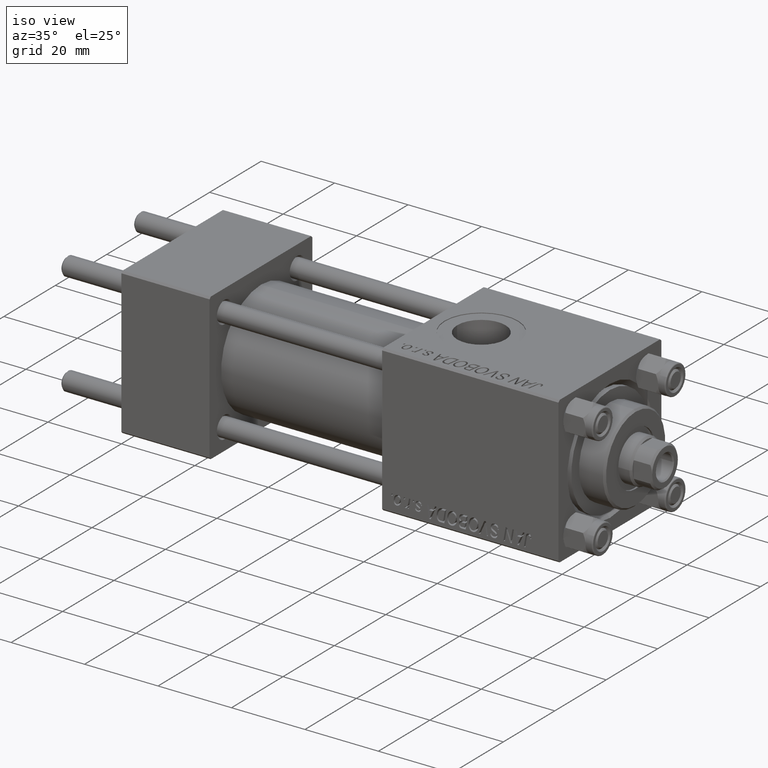
[diagram: clean part render]
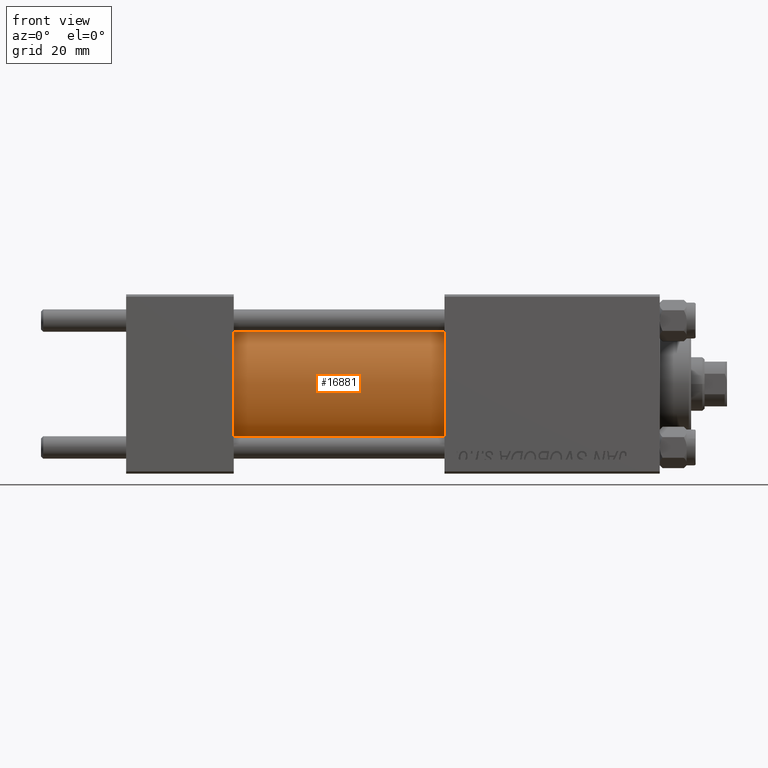
[diagram: tour spotlight — one face highlighted and labeled with its STEP entity id]
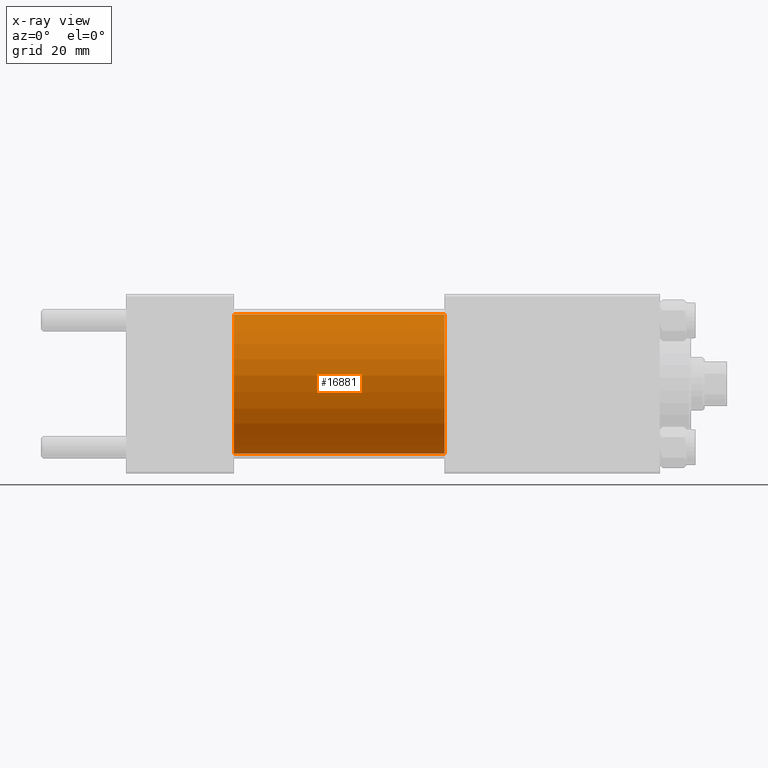
[diagram: x-ray of the same camera — body ghosted, this tour face saturated]
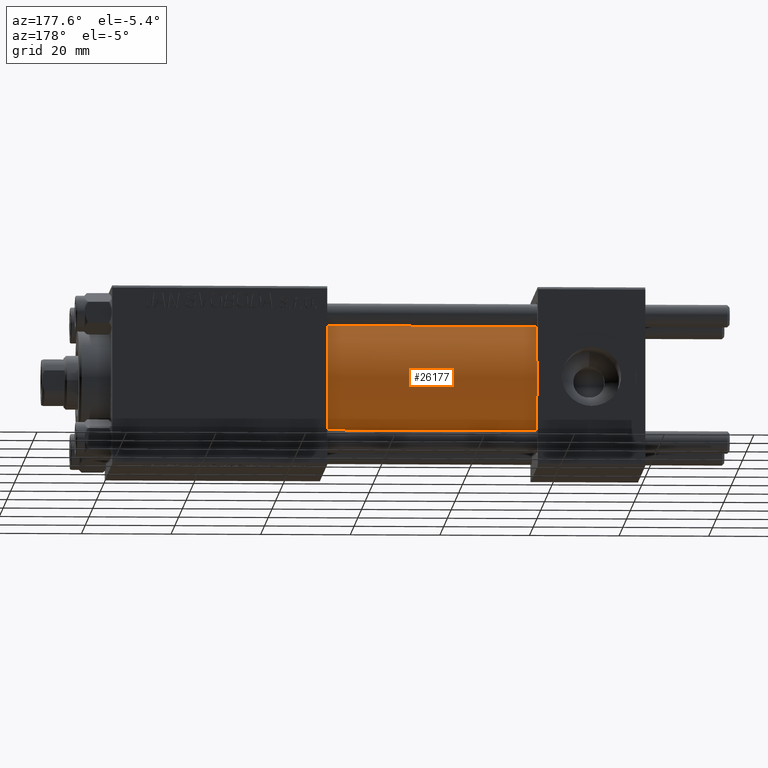
[diagram: tour spotlight — one face highlighted and labeled with its STEP entity id]
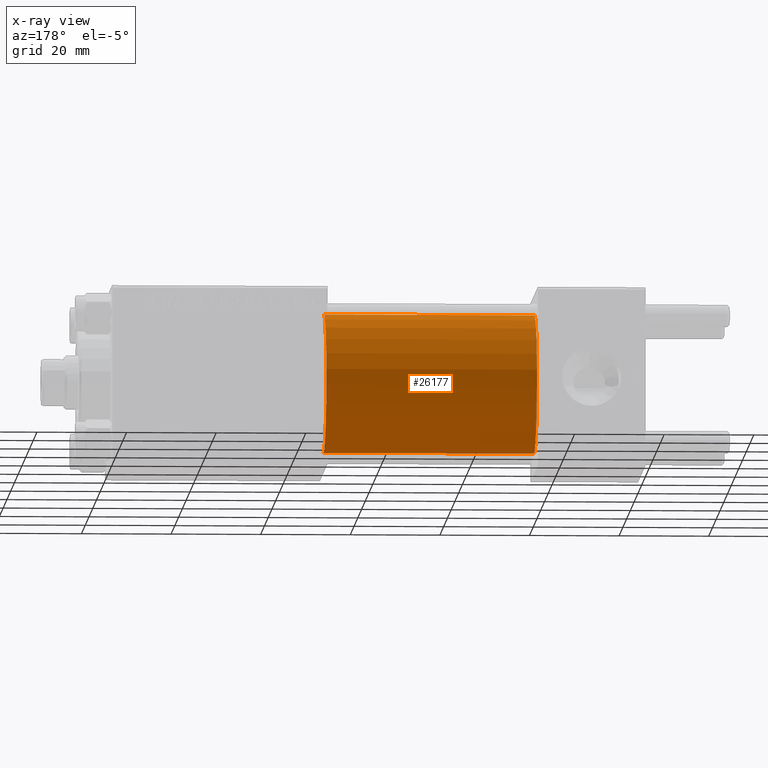
[diagram: x-ray of the same camera — body ghosted, this tour face saturated]
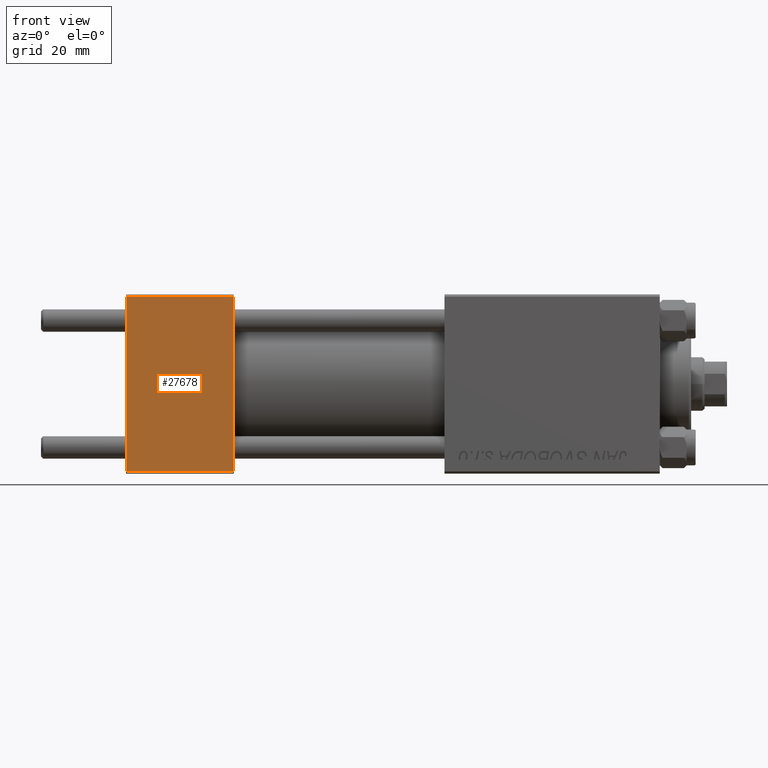
[diagram: tour spotlight — one face highlighted and labeled with its STEP entity id]
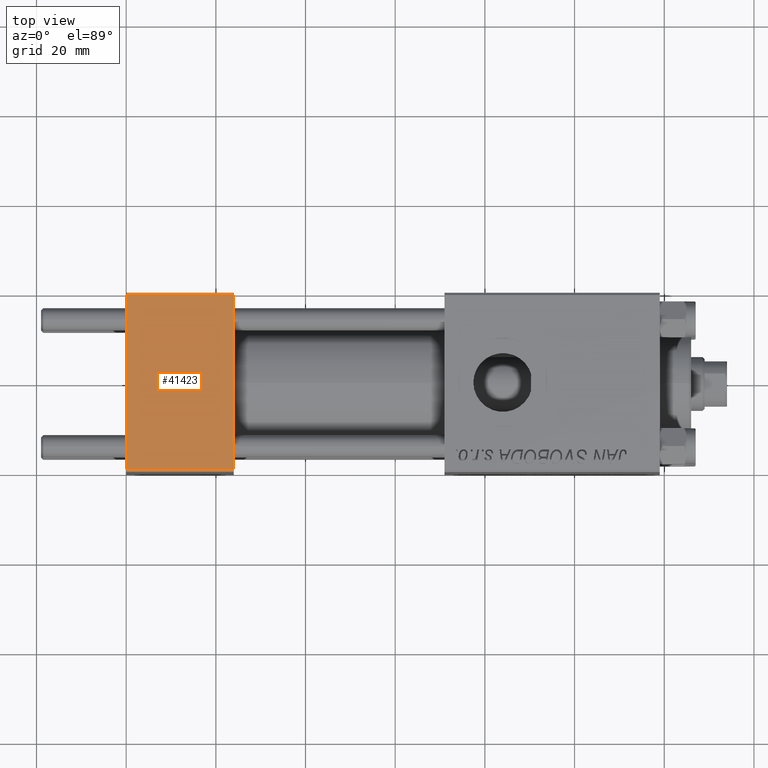
[diagram: tour spotlight — one face highlighted and labeled with its STEP entity id]
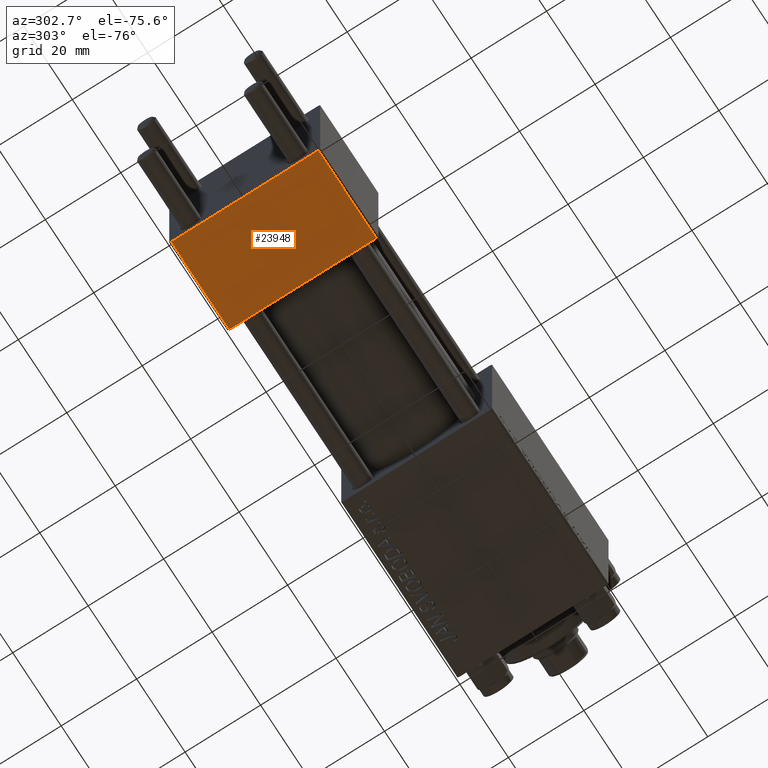
[diagram: tour spotlight — one face highlighted and labeled with its STEP entity id]
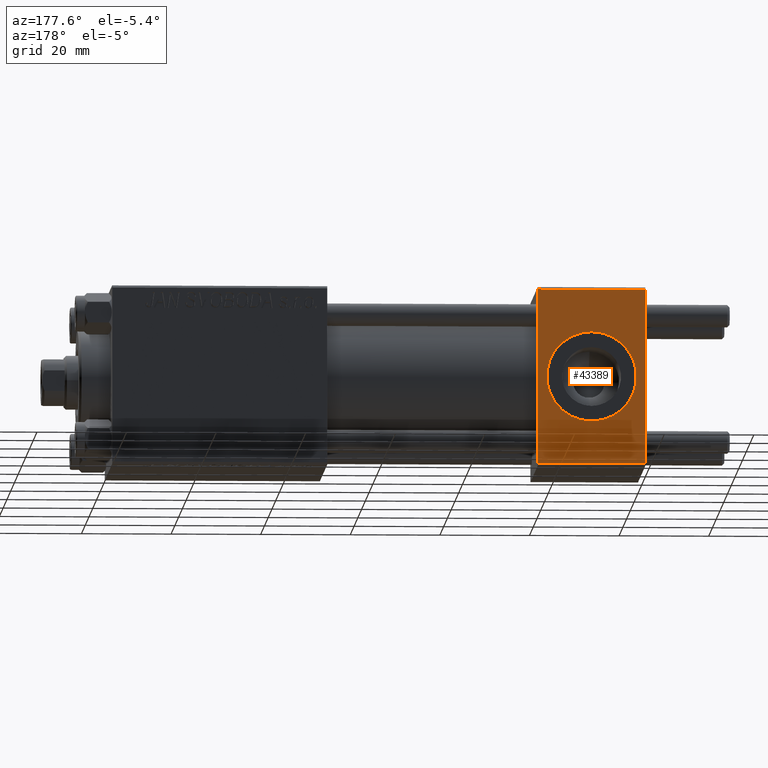
[diagram: tour spotlight — one face highlighted and labeled with its STEP entity id]
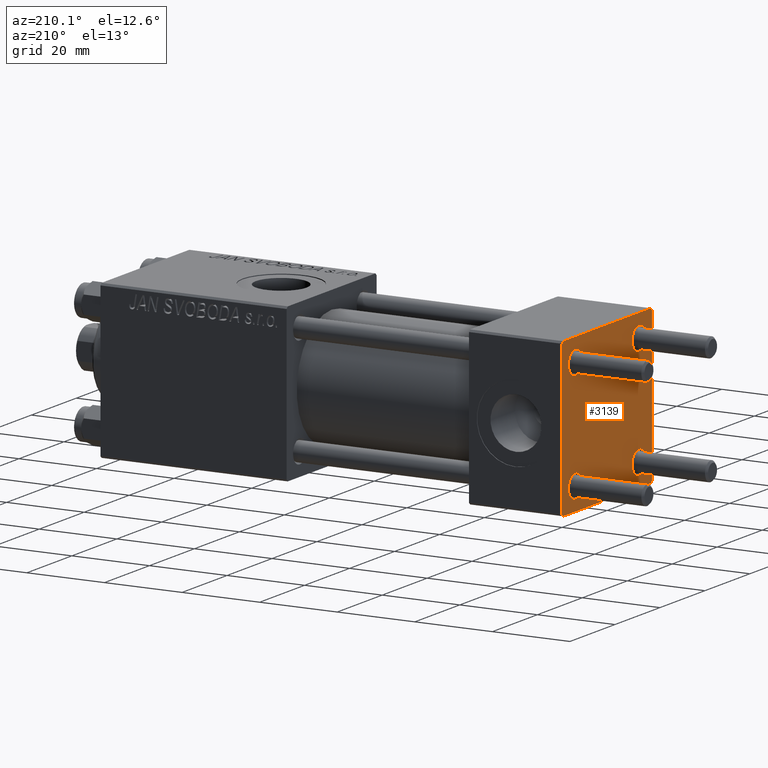
[diagram: tour spotlight — one face highlighted and labeled with its STEP entity id]
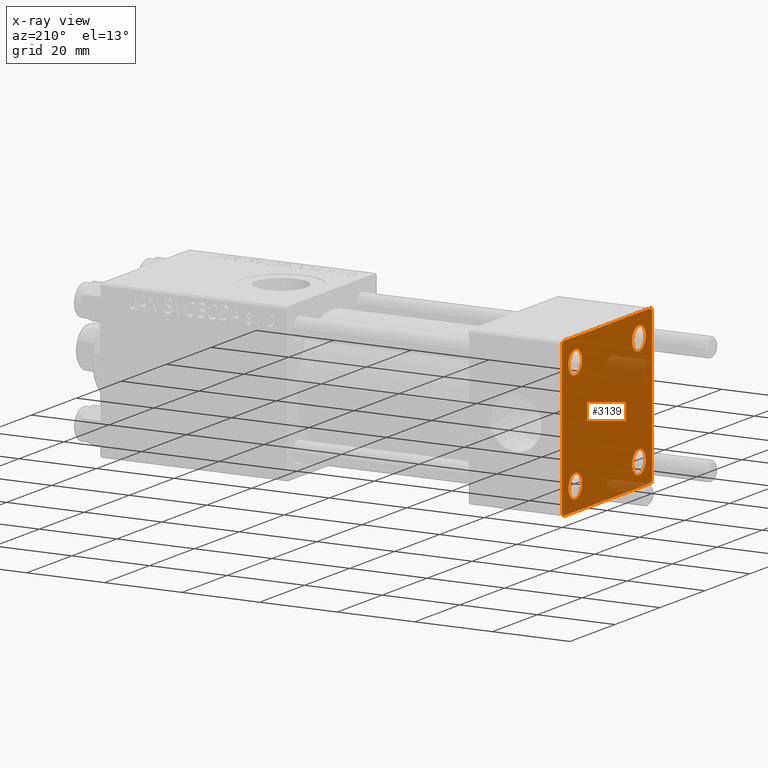
[diagram: x-ray of the same camera — body ghosted, this tour face saturated]
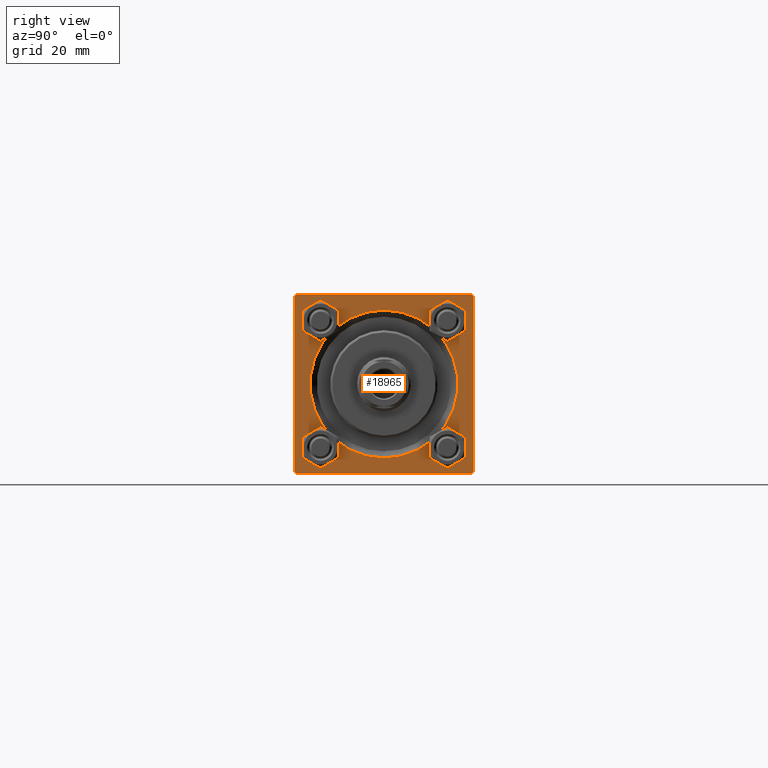
[diagram: tour spotlight — one face highlighted and labeled with its STEP entity id]
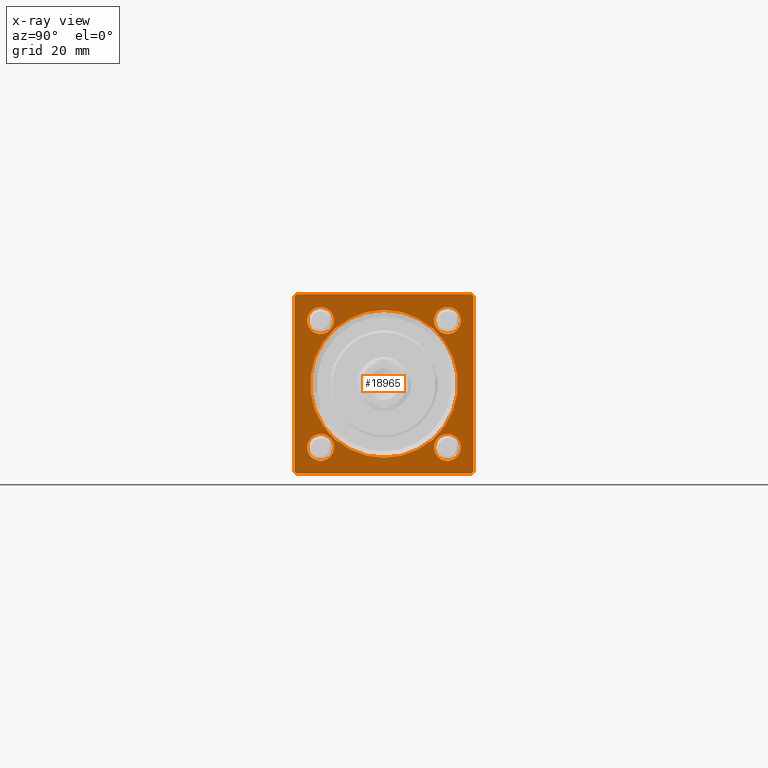
[diagram: x-ray of the same camera — body ghosted, this tour face saturated]
A machine part: a face-by-face anatomy tour. The part has 1132 B-rep faces; the first image is the clean iso view, then the 8 largest visible faces are spotlighted one at a time (largest first), each with its STEP entity span.

Face 1 — front view, entity #16881. An x-ray twin of the same camera follows (body ghosted, this face saturated) — the face is partly hidden behind the body. In plain terms, the highlighted cylindrical surface (partial cylindrical patch) has radius 15.5 mm, axis along (-1, -0, -0).
Definition (entity closure, byte-faithful):
#149 = EDGE_CURVE ( 'NONE', #35777, #1937, #38199, .T. ) ;
#533 = VECTOR ( 'NONE', #12040, 1000.000000000000000 ) ;
#1664 = CARTESIAN_POINT ( 'NONE',  ( 71.00000000000001421, 1.898202538678397557E-15, -15.50000000000000000 ) ) ;
#1937 = VERTEX_POINT ( 'NONE', #1664 ) ;
#4001 = CARTESIAN_POINT ( 'NONE',  ( 24.00000000000000000, 0.000000000000000000, 15.50000000000000000 ) ) ;
#5058 = ORIENTED_EDGE ( 'NONE', *, *, #149, .F. ) ;
#5624 = CARTESIAN_POINT ( 'NONE',  ( 71.00000000000001421, 0.000000000000000000, 0.000000000000000000 ) ) ;
#6158 = ORIENTED_EDGE ( 'NONE', *, *, #9521, .T. ) ;
#6870 = AXIS2_PLACEMENT_3D ( 'NONE', #5624, #31812, #28530 ) ;
#7610 = CYLINDRICAL_SURFACE ( 'NONE', #39384, 15.50000000000000000 ) ;
#8749 = EDGE_CURVE ( 'NONE', #35777, #49403, #39230, .T. ) ;
#9233 = EDGE_LOOP ( 'NONE', ( #25036, #5058, #37912, #6158 ) ) ;
#9521 = EDGE_CURVE ( 'NONE', #49403, #46127, #10217, .T. ) ;
#10217 = CIRCLE ( 'NONE', #37595, 15.50000000000000000 ) ;
#11077 = CARTESIAN_POINT ( 'NONE',  ( 71.00000000000001421, 1.898202538678397557E-15, -15.50000000000000000 ) ) ;
#11812 = LINE ( 'NONE', #11077, #33869 ) ;
#12040 = DIRECTION ( 'NONE',  ( -1.000000000000000000, -0.000000000000000000, -0.000000000000000000 ) ) ;
#16693 = CARTESIAN_POINT ( 'NONE',  ( 24.00000000000000000, 1.898202538678397557E-15, -15.50000000000000000 ) ) ;
#16881 = ADVANCED_FACE ( 'NONE', ( #34544 ), #7610, .T. ) ;
#21594 = CARTESIAN_POINT ( 'NONE',  ( 24.00000000000000000, 0.000000000000000000, 0.000000000000000000 ) ) ;
#24054 = CARTESIAN_POINT ( 'NONE',  ( 71.00000000000001421, 0.000000000000000000, 15.50000000000000000 ) ) ;
#25036 = ORIENTED_EDGE ( 'NONE', *, *, #33320, .F. ) ;
#26434 = DIRECTION ( 'NONE',  ( -1.000000000000000000, -0.000000000000000000, -0.000000000000000000 ) ) ;
#28138 = CARTESIAN_POINT ( 'NONE',  ( 71.00000000000001421, 0.000000000000000000, 15.50000000000000000 ) ) ;
#28530 = DIRECTION ( 'NONE',  ( 0.000000000000000000, 0.000000000000000000, -1.000000000000000000 ) ) ;
#30526 = DIRECTION ( 'NONE',  ( -1.000000000000000000, -0.000000000000000000, -0.000000000000000000 ) ) ;
#31812 = DIRECTION ( 'NONE',  ( 1.000000000000000000, 0.000000000000000000, 0.000000000000000000 ) ) ;
#33320 = EDGE_CURVE ( 'NONE', #1937, #46127, #11812, .T. ) ;
#33869 = VECTOR ( 'NONE', #26434, 1000.000000000000000 ) ;
#34544 = FACE_OUTER_BOUND ( 'NONE', #9233, .T. ) ;
#35777 = VERTEX_POINT ( 'NONE', #24054 ) ;
#37595 = AXIS2_PLACEMENT_3D ( 'NONE', #21594, #44494, #40965 ) ;
#37912 = ORIENTED_EDGE ( 'NONE', *, *, #8749, .T. ) ;
#38199 = CIRCLE ( 'NONE', #6870, 15.50000000000000000 ) ;
#39230 = LINE ( 'NONE', #28138, #533 ) ;
#39384 = AXIS2_PLACEMENT_3D ( 'NONE', #45628, #30526, #42345 ) ;
#40965 = DIRECTION ( 'NONE',  ( 0.000000000000000000, 0.000000000000000000, 1.000000000000000000 ) ) ;
#42345 = DIRECTION ( 'NONE',  ( 0.000000000000000000, 0.000000000000000000, 1.000000000000000000 ) ) ;
#44494 = DIRECTION ( 'NONE',  ( 1.000000000000000000, 0.000000000000000000, 0.000000000000000000 ) ) ;
#45628 = CARTESIAN_POINT ( 'NONE',  ( 71.00000000000001421, 0.000000000000000000, 0.000000000000000000 ) ) ;
#46127 = VERTEX_POINT ( 'NONE', #16693 ) ;
#49403 = VERTEX_POINT ( 'NONE', #4001 ) ;

Face 2 — auxiliary view, entity #26177. An x-ray twin of the same camera follows (body ghosted, this face saturated) — the face is partly hidden behind the body. In plain terms, the highlighted cylindrical surface (partial cylindrical patch) has radius 15.5 mm, axis along (-1, -0, -0).
Definition (entity closure, byte-faithful):
#136 = ORIENTED_EDGE ( 'NONE', *, *, #8749, .F. ) ;
#533 = VECTOR ( 'NONE', #12040, 1000.000000000000000 ) ;
#1664 = CARTESIAN_POINT ( 'NONE',  ( 71.00000000000001421, 1.898202538678397557E-15, -15.50000000000000000 ) ) ;
#1937 = VERTEX_POINT ( 'NONE', #1664 ) ;
#2937 = ORIENTED_EDGE ( 'NONE', *, *, #18491, .F. ) ;
#3457 = AXIS2_PLACEMENT_3D ( 'NONE', #48108, #6820, #29480 ) ;
#4001 = CARTESIAN_POINT ( 'NONE',  ( 24.00000000000000000, 0.000000000000000000, 15.50000000000000000 ) ) ;
#6820 = DIRECTION ( 'NONE',  ( 1.000000000000000000, 0.000000000000000000, 0.000000000000000000 ) ) ;
#8749 = EDGE_CURVE ( 'NONE', #35777, #49403, #39230, .T. ) ;
#9676 = FACE_OUTER_BOUND ( 'NONE', #32758, .T. ) ;
#11059 = CARTESIAN_POINT ( 'NONE',  ( 71.00000000000001421, 0.000000000000000000, 0.000000000000000000 ) ) ;
#11077 = CARTESIAN_POINT ( 'NONE',  ( 71.00000000000001421, 1.898202538678397557E-15, -15.50000000000000000 ) ) ;
#11812 = LINE ( 'NONE', #11077, #33869 ) ;
#12040 = DIRECTION ( 'NONE',  ( -1.000000000000000000, -0.000000000000000000, -0.000000000000000000 ) ) ;
#14405 = AXIS2_PLACEMENT_3D ( 'NONE', #11059, #33970, #22641 ) ;
#15362 = ORIENTED_EDGE ( 'NONE', *, *, #33320, .T. ) ;
#16693 = CARTESIAN_POINT ( 'NONE',  ( 24.00000000000000000, 1.898202538678397557E-15, -15.50000000000000000 ) ) ;
#18491 = EDGE_CURVE ( 'NONE', #1937, #35777, #29684, .T. ) ;
#22641 = DIRECTION ( 'NONE',  ( 0.000000000000000000, 0.000000000000000000, -1.000000000000000000 ) ) ;
#24054 = CARTESIAN_POINT ( 'NONE',  ( 71.00000000000001421, 0.000000000000000000, 15.50000000000000000 ) ) ;
#24062 = AXIS2_PLACEMENT_3D ( 'NONE', #24523, #36106, #28292 ) ;
#24523 = CARTESIAN_POINT ( 'NONE',  ( 71.00000000000001421, 0.000000000000000000, 0.000000000000000000 ) ) ;
#25169 = CIRCLE ( 'NONE', #3457, 15.50000000000000000 ) ;
#26177 = ADVANCED_FACE ( 'NONE', ( #9676 ), #35604, .T. ) ;
#26434 = DIRECTION ( 'NONE',  ( -1.000000000000000000, -0.000000000000000000, -0.000000000000000000 ) ) ;
#28138 = CARTESIAN_POINT ( 'NONE',  ( 71.00000000000001421, 0.000000000000000000, 15.50000000000000000 ) ) ;
#28292 = DIRECTION ( 'NONE',  ( 0.000000000000000000, 0.000000000000000000, 1.000000000000000000 ) ) ;
#29480 = DIRECTION ( 'NONE',  ( 0.000000000000000000, 0.000000000000000000, 1.000000000000000000 ) ) ;
#29684 = CIRCLE ( 'NONE', #14405, 15.50000000000000000 ) ;
#30413 = ORIENTED_EDGE ( 'NONE', *, *, #40662, .T. ) ;
#32758 = EDGE_LOOP ( 'NONE', ( #2937, #15362, #30413, #136 ) ) ;
#33320 = EDGE_CURVE ( 'NONE', #1937, #46127, #11812, .T. ) ;
#33869 = VECTOR ( 'NONE', #26434, 1000.000000000000000 ) ;
#33970 = DIRECTION ( 'NONE',  ( 1.000000000000000000, 0.000000000000000000, 0.000000000000000000 ) ) ;
#35604 = CYLINDRICAL_SURFACE ( 'NONE', #24062, 15.50000000000000000 ) ;
#35777 = VERTEX_POINT ( 'NONE', #24054 ) ;
#36106 = DIRECTION ( 'NONE',  ( -1.000000000000000000, -0.000000000000000000, -0.000000000000000000 ) ) ;
#39230 = LINE ( 'NONE', #28138, #533 ) ;
#40662 = EDGE_CURVE ( 'NONE', #46127, #49403, #25169, .T. ) ;
#46127 = VERTEX_POINT ( 'NONE', #16693 ) ;
#48108 = CARTESIAN_POINT ( 'NONE',  ( 24.00000000000000000, 0.000000000000000000, 0.000000000000000000 ) ) ;
#49403 = VERTEX_POINT ( 'NONE', #4001 ) ;

Face 3 — front view, entity #27678. In plain terms, the highlighted planar face has unit normal (0, 1, 0).
Definition (entity closure, byte-faithful):
#339 = EDGE_CURVE ( 'NONE', #48482, #32252, #45865, .T. ) ;
#1952 = CARTESIAN_POINT ( 'NONE',  ( 24.00000000000000000, -20.00000000000000000, -19.49999999999999645 ) ) ;
#2017 = VECTOR ( 'NONE', #14922, 1000.000000000000000 ) ;
#4403 = DIRECTION ( 'NONE',  ( -0.000000000000000000, 1.000000000000000000, 8.673617379884036705E-17 ) ) ;
#7940 = PLANE ( 'NONE',  #38566 ) ;
#8438 = CARTESIAN_POINT ( 'NONE',  ( 24.00000000000000000, -20.00000000000000355, 19.99999999999998934 ) ) ;
#8636 = CARTESIAN_POINT ( 'NONE',  ( 0.000000000000000000, -20.00000000000000355, 19.99999999999998934 ) ) ;
#9504 = DIRECTION ( 'NONE',  ( 1.000000000000000000, 0.000000000000000000, 0.000000000000000000 ) ) ;
#10819 = CARTESIAN_POINT ( 'NONE',  ( 24.00000000000000000, -20.00000000000000355, 19.49999999999998224 ) ) ;
#12684 = LINE ( 'NONE', #28039, #29923 ) ;
#14196 = ORIENTED_EDGE ( 'NONE', *, *, #339, .T. ) ;
#14922 = DIRECTION ( 'NONE',  ( -1.000000000000000000, 0.000000000000000000, 0.000000000000000000 ) ) ;
#15657 = CARTESIAN_POINT ( 'NONE',  ( 24.00000000000000000, -20.00000000000000355, 19.49999999999998224 ) ) ;
#19973 = LINE ( 'NONE', #8636, #25656 ) ;
#20823 = VERTEX_POINT ( 'NONE', #31660 ) ;
#22073 = EDGE_CURVE ( 'NONE', #32252, #20823, #19973, .T. ) ;
#25656 = VECTOR ( 'NONE', #28015, 1000.000000000000000 ) ;
#26358 = CARTESIAN_POINT ( 'NONE',  ( 24.00000000000000000, -20.00000000000000000, -19.49999999999999645 ) ) ;
#27060 = ORIENTED_EDGE ( 'NONE', *, *, #22073, .T. ) ;
#27678 = ADVANCED_FACE ( 'NONE', ( #31346 ), #7940, .F. ) ;
#28015 = DIRECTION ( 'NONE',  ( 0.000000000000000000, 8.673617379884036705E-17, -1.000000000000000000 ) ) ;
#28039 = CARTESIAN_POINT ( 'NONE',  ( 24.00000000000000000, -20.00000000000000355, 19.99999999999998934 ) ) ;
#29923 = VECTOR ( 'NONE', #43405, 1000.000000000000000 ) ;
#30851 = DIRECTION ( 'NONE',  ( 0.000000000000000000, -8.673617379884036705E-17, 1.000000000000000000 ) ) ;
#31346 = FACE_OUTER_BOUND ( 'NONE', #45391, .T. ) ;
#31660 = CARTESIAN_POINT ( 'NONE',  ( 0.000000000000000000, -20.00000000000000000, -19.49999999999999645 ) ) ;
#32252 = VERTEX_POINT ( 'NONE', #42512 ) ;
#33661 = EDGE_CURVE ( 'NONE', #48482, #44946, #12684, .T. ) ;
#35515 = EDGE_CURVE ( 'NONE', #20823, #44946, #47508, .T. ) ;
#38566 = AXIS2_PLACEMENT_3D ( 'NONE', #8438, #4403, #30851 ) ;
#42512 = CARTESIAN_POINT ( 'NONE',  ( 0.000000000000000000, -20.00000000000000355, 19.49999999999998224 ) ) ;
#43079 = ORIENTED_EDGE ( 'NONE', *, *, #35515, .T. ) ;
#43405 = DIRECTION ( 'NONE',  ( 0.000000000000000000, 8.673617379884036705E-17, -1.000000000000000000 ) ) ;
#44474 = ORIENTED_EDGE ( 'NONE', *, *, #33661, .F. ) ;
#44946 = VERTEX_POINT ( 'NONE', #26358 ) ;
#45391 = EDGE_LOOP ( 'NONE', ( #27060, #43079, #44474, #14196 ) ) ;
#45865 = LINE ( 'NONE', #15657, #2017 ) ;
#47508 = LINE ( 'NONE', #1952, #49252 ) ;
#48482 = VERTEX_POINT ( 'NONE', #10819 ) ;
#49252 = VECTOR ( 'NONE', #9504, 1000.000000000000000 ) ;

Face 4 — top view, entity #41423. In plain terms, the highlighted planar face has unit normal (0, 0, -1).
Definition (entity closure, byte-faithful):
#909 = VECTOR ( 'NONE', #3095, 1000.000000000000000 ) ;
#1524 = LINE ( 'NONE', #40547, #33329 ) ;
#1791 = DIRECTION ( 'NONE',  ( 0.000000000000000000, 2.602085213965210149E-16, -1.000000000000000000 ) ) ;
#2106 = EDGE_CURVE ( 'NONE', #9307, #23474, #38874, .T. ) ;
#2308 = ORIENTED_EDGE ( 'NONE', *, *, #44612, .T. ) ;
#3095 = DIRECTION ( 'NONE',  ( 1.000000000000000000, 0.000000000000000000, 0.000000000000000000 ) ) ;
#3806 = LINE ( 'NONE', #49390, #27674 ) ;
#5565 = DIRECTION ( 'NONE',  ( 0.000000000000000000, 1.000000000000000000, 2.602085213965210149E-16 ) ) ;
#6036 = CARTESIAN_POINT ( 'NONE',  ( 24.00000000000000000, 19.50000000000000000, 20.00000000000000000 ) ) ;
#9307 = VERTEX_POINT ( 'NONE', #6036 ) ;
#10161 = LINE ( 'NONE', #34038, #909 ) ;
#13084 = VERTEX_POINT ( 'NONE', #21060 ) ;
#13119 = PLANE ( 'NONE',  #45325 ) ;
#15135 = EDGE_LOOP ( 'NONE', ( #26304, #25300, #47356, #2308 ) ) ;
#18661 = CARTESIAN_POINT ( 'NONE',  ( 24.00000000000000000, -19.49999999999999289, 19.99999999999998934 ) ) ;
#19746 = CARTESIAN_POINT ( 'NONE',  ( 24.00000000000000000, 20.00000000000000000, 20.00000000000000000 ) ) ;
#21060 = CARTESIAN_POINT ( 'NONE',  ( 0.000000000000000000, -19.49999999999999289, 19.99999999999998934 ) ) ;
#23474 = VERTEX_POINT ( 'NONE', #18661 ) ;
#24700 = CARTESIAN_POINT ( 'NONE',  ( 24.00000000000000000, 20.00000000000000000, 20.00000000000000000 ) ) ;
#24957 = FACE_OUTER_BOUND ( 'NONE', #15135, .T. ) ;
#25300 = ORIENTED_EDGE ( 'NONE', *, *, #32972, .T. ) ;
#26304 = ORIENTED_EDGE ( 'NONE', *, *, #44414, .T. ) ;
#27674 = VECTOR ( 'NONE', #45358, 1000.000000000000000 ) ;
#28451 = DIRECTION ( 'NONE',  ( -1.000000000000000000, 0.000000000000000000, 0.000000000000000000 ) ) ;
#32972 = EDGE_CURVE ( 'NONE', #13084, #23474, #10161, .T. ) ;
#33329 = VECTOR ( 'NONE', #28451, 1000.000000000000000 ) ;
#34038 = CARTESIAN_POINT ( 'NONE',  ( 24.00000000000000000, -19.49999999999999289, 19.99999999999998934 ) ) ;
#38874 = LINE ( 'NONE', #19746, #47899 ) ;
#40547 = CARTESIAN_POINT ( 'NONE',  ( 0.000000000000000000, 19.50000000000000000, 20.00000000000000000 ) ) ;
#41423 = ADVANCED_FACE ( 'NONE', ( #24957 ), #13119, .F. ) ;
#42074 = CARTESIAN_POINT ( 'NONE',  ( 0.000000000000000000, 19.50000000000000000, 20.00000000000000000 ) ) ;
#44388 = VERTEX_POINT ( 'NONE', #42074 ) ;
#44414 = EDGE_CURVE ( 'NONE', #44388, #13084, #3806, .T. ) ;
#44612 = EDGE_CURVE ( 'NONE', #9307, #44388, #1524, .T. ) ;
#45325 = AXIS2_PLACEMENT_3D ( 'NONE', #24700, #1791, #5565 ) ;
#45358 = DIRECTION ( 'NONE',  ( 0.000000000000000000, -1.000000000000000000, -2.602085213965210149E-16 ) ) ;
#46422 = DIRECTION ( 'NONE',  ( 0.000000000000000000, -1.000000000000000000, -2.602085213965210149E-16 ) ) ;
#47356 = ORIENTED_EDGE ( 'NONE', *, *, #2106, .F. ) ;
#47899 = VECTOR ( 'NONE', #46422, 1000.000000000000000 ) ;
#49390 = CARTESIAN_POINT ( 'NONE',  ( 0.000000000000000000, 20.00000000000000000, 20.00000000000000000 ) ) ;

Face 5 — auxiliary view, entity #23948. In plain terms, the highlighted planar face has unit normal (0, -0, -1).
Definition (entity closure, byte-faithful):
#1887 = VERTEX_POINT ( 'NONE', #19552 ) ;
#2582 = CARTESIAN_POINT ( 'NONE',  ( 0.000000000000000000, -19.50000000000000711, -20.00000000000000000 ) ) ;
#2998 = DIRECTION ( 'NONE',  ( 0.000000000000000000, -1.734723475976806848E-16, -1.000000000000000000 ) ) ;
#3935 = VECTOR ( 'NONE', #7616, 1000.000000000000000 ) ;
#5831 = VECTOR ( 'NONE', #24607, 1000.000000000000000 ) ;
#7616 = DIRECTION ( 'NONE',  ( 0.000000000000000000, -1.000000000000000000, 1.734723475976807094E-16 ) ) ;
#7619 = CARTESIAN_POINT ( 'NONE',  ( 24.00000000000000000, 20.00000000000000000, -20.00000000000000711 ) ) ;
#8792 = CARTESIAN_POINT ( 'NONE',  ( 0.000000000000000000, -19.50000000000000711, -20.00000000000000000 ) ) ;
#9246 = CARTESIAN_POINT ( 'NONE',  ( 24.00000000000000000, 19.50000000000000711, -20.00000000000000711 ) ) ;
#12445 = ORIENTED_EDGE ( 'NONE', *, *, #14166, .F. ) ;
#14166 = EDGE_CURVE ( 'NONE', #40132, #22856, #45880, .T. ) ;
#15221 = AXIS2_PLACEMENT_3D ( 'NONE', #37489, #2998, #21888 ) ;
#16967 = CARTESIAN_POINT ( 'NONE',  ( 0.000000000000000000, 19.50000000000000711, -20.00000000000000711 ) ) ;
#17941 = DIRECTION ( 'NONE',  ( -1.000000000000000000, 0.000000000000000000, 0.000000000000000000 ) ) ;
#19552 = CARTESIAN_POINT ( 'NONE',  ( 24.00000000000000000, 19.50000000000000711, -20.00000000000000711 ) ) ;
#21522 = ORIENTED_EDGE ( 'NONE', *, *, #36262, .T. ) ;
#21888 = DIRECTION ( 'NONE',  ( 0.000000000000000000, 1.000000000000000000, -1.734723475976806848E-16 ) ) ;
#22856 = VERTEX_POINT ( 'NONE', #8792 ) ;
#23469 = DIRECTION ( 'NONE',  ( 0.000000000000000000, -1.000000000000000000, 1.734723475976807094E-16 ) ) ;
#23948 = ADVANCED_FACE ( 'NONE', ( #48320 ), #25658, .T. ) ;
#24285 = ORIENTED_EDGE ( 'NONE', *, *, #35533, .T. ) ;
#24607 = DIRECTION ( 'NONE',  ( 1.000000000000000000, 0.000000000000000000, 0.000000000000000000 ) ) ;
#25658 = PLANE ( 'NONE',  #15221 ) ;
#26298 = CARTESIAN_POINT ( 'NONE',  ( 24.00000000000000000, -19.50000000000000711, -20.00000000000000000 ) ) ;
#27115 = EDGE_CURVE ( 'NONE', #1887, #32695, #45884, .T. ) ;
#28373 = LINE ( 'NONE', #9246, #5831 ) ;
#29013 = LINE ( 'NONE', #2582, #42019 ) ;
#32695 = VERTEX_POINT ( 'NONE', #26298 ) ;
#33696 = VECTOR ( 'NONE', #23469, 1000.000000000000000 ) ;
#35533 = EDGE_CURVE ( 'NONE', #40132, #1887, #28373, .T. ) ;
#36262 = EDGE_CURVE ( 'NONE', #32695, #22856, #29013, .T. ) ;
#37489 = CARTESIAN_POINT ( 'NONE',  ( 24.00000000000000000, 20.00000000000000000, -20.00000000000000711 ) ) ;
#37914 = ORIENTED_EDGE ( 'NONE', *, *, #27115, .T. ) ;
#40132 = VERTEX_POINT ( 'NONE', #16967 ) ;
#42019 = VECTOR ( 'NONE', #17941, 1000.000000000000000 ) ;
#42106 = CARTESIAN_POINT ( 'NONE',  ( 0.000000000000000000, 20.00000000000000000, -20.00000000000000711 ) ) ;
#45880 = LINE ( 'NONE', #42106, #3935 ) ;
#45884 = LINE ( 'NONE', #7619, #33696 ) ;
#48130 = EDGE_LOOP ( 'NONE', ( #12445, #24285, #37914, #21522 ) ) ;
#48320 = FACE_OUTER_BOUND ( 'NONE', #48130, .T. ) ;

Face 6 — auxiliary view, entity #43389. In plain terms, the highlighted planar face has unit normal (0, 1, 0).
Definition (entity closure, byte-faithful):
#1725 = EDGE_CURVE ( 'NONE', #37479, #17744, #21372, .T. ) ;
#3314 = DIRECTION ( 'NONE',  ( -0.000000000000000000, 1.000000000000000000, 0.000000000000000000 ) ) ;
#3553 = FACE_BOUND ( 'NONE', #20181, .T. ) ;
#3787 = ORIENTED_EDGE ( 'NONE', *, *, #4579, .F. ) ;
#3898 = VECTOR ( 'NONE', #12741, 1000.000000000000000 ) ;
#4337 = VECTOR ( 'NONE', #45107, 1000.000000000000000 ) ;
#4579 = EDGE_CURVE ( 'NONE', #6679, #5677, #18905, .T. ) ;
#5394 = CARTESIAN_POINT ( 'NONE',  ( 0.000000000000000000, 20.00000000000000000, 19.49999999999999289 ) ) ;
#5677 = VERTEX_POINT ( 'NONE', #33378 ) ;
#6376 = CARTESIAN_POINT ( 'NONE',  ( 12.00000000000000000, 20.00000000000000000, 0.000000000000000000 ) ) ;
#6518 = LINE ( 'NONE', #26133, #35352 ) ;
#6679 = VERTEX_POINT ( 'NONE', #44795 ) ;
#7132 = VERTEX_POINT ( 'NONE', #30057 ) ;
#7578 = DIRECTION ( 'NONE',  ( 0.000000000000000000, -0.000000000000000000, 1.000000000000000000 ) ) ;
#11339 = DIRECTION ( 'NONE',  ( 0.000000000000000000, 0.000000000000000000, 1.000000000000000000 ) ) ;
#12082 = CARTESIAN_POINT ( 'NONE',  ( 12.00000000000000000, 20.00000000000000000, 0.000000000000000000 ) ) ;
#12741 = DIRECTION ( 'NONE',  ( 0.000000000000000000, 0.000000000000000000, -1.000000000000000000 ) ) ;
#13068 = EDGE_CURVE ( 'NONE', #7132, #25014, #24830, .T. ) ;
#13334 = VECTOR ( 'NONE', #36726, 1000.000000000000000 ) ;
#16042 = EDGE_CURVE ( 'NONE', #25014, #17744, #6518, .T. ) ;
#17036 = CARTESIAN_POINT ( 'NONE',  ( 24.00000000000000000, 20.00000000000000000, 20.00000000000000000 ) ) ;
#17465 = DIRECTION ( 'NONE',  ( 0.000000000000000000, 0.000000000000000000, 1.000000000000000000 ) ) ;
#17744 = VERTEX_POINT ( 'NONE', #22812 ) ;
#18209 = DIRECTION ( 'NONE',  ( 0.000000000000000000, 1.000000000000000000, 0.000000000000000000 ) ) ;
#18679 = LINE ( 'NONE', #37318, #4337 ) ;
#18905 = CIRCLE ( 'NONE', #35775, 10.00000000000000000 ) ;
#19396 = ORIENTED_EDGE ( 'NONE', *, *, #34334, .F. ) ;
#20181 = EDGE_LOOP ( 'NONE', ( #3787, #19396 ) ) ;
#20579 = CARTESIAN_POINT ( 'NONE',  ( 24.00000000000000000, 20.00000000000000000, -19.50000000000002132 ) ) ;
#21372 = LINE ( 'NONE', #48546, #13334 ) ;
#21497 = ORIENTED_EDGE ( 'NONE', *, *, #43362, .T. ) ;
#22207 = PLANE ( 'NONE',  #43738 ) ;
#22812 = CARTESIAN_POINT ( 'NONE',  ( 0.000000000000000000, 20.00000000000000000, -19.50000000000002132 ) ) ;
#24830 = LINE ( 'NONE', #17036, #3898 ) ;
#25014 = VERTEX_POINT ( 'NONE', #20579 ) ;
#25897 = AXIS2_PLACEMENT_3D ( 'NONE', #12082, #42796, #11339 ) ;
#26133 = CARTESIAN_POINT ( 'NONE',  ( 24.00000000000000000, 20.00000000000000000, -19.50000000000002132 ) ) ;
#30057 = CARTESIAN_POINT ( 'NONE',  ( 24.00000000000000000, 20.00000000000000000, 19.49999999999999289 ) ) ;
#31649 = ORIENTED_EDGE ( 'NONE', *, *, #13068, .T. ) ;
#33378 = CARTESIAN_POINT ( 'NONE',  ( 12.00000000000000178, 20.00000000000000000, -10.00000000000000000 ) ) ;
#33530 = FACE_OUTER_BOUND ( 'NONE', #46817, .T. ) ;
#34016 = CARTESIAN_POINT ( 'NONE',  ( 24.00000000000000000, 20.00000000000000000, 20.00000000000000000 ) ) ;
#34334 = EDGE_CURVE ( 'NONE', #5677, #6679, #47580, .T. ) ;
#35289 = ORIENTED_EDGE ( 'NONE', *, *, #1725, .F. ) ;
#35352 = VECTOR ( 'NONE', #41001, 1000.000000000000000 ) ;
#35775 = AXIS2_PLACEMENT_3D ( 'NONE', #6376, #18209, #17465 ) ;
#36726 = DIRECTION ( 'NONE',  ( 0.000000000000000000, 0.000000000000000000, -1.000000000000000000 ) ) ;
#37318 = CARTESIAN_POINT ( 'NONE',  ( 24.00000000000000000, 20.00000000000000000, 19.49999999999999289 ) ) ;
#37479 = VERTEX_POINT ( 'NONE', #5394 ) ;
#41001 = DIRECTION ( 'NONE',  ( -1.000000000000000000, 0.000000000000000000, 0.000000000000000000 ) ) ;
#42796 = DIRECTION ( 'NONE',  ( 0.000000000000000000, 1.000000000000000000, 0.000000000000000000 ) ) ;
#43362 = EDGE_CURVE ( 'NONE', #37479, #7132, #18679, .T. ) ;
#43389 = ADVANCED_FACE ( 'NONE', ( #3553, #33530 ), #22207, .T. ) ;
#43738 = AXIS2_PLACEMENT_3D ( 'NONE', #34016, #3314, #7578 ) ;
#44795 = CARTESIAN_POINT ( 'NONE',  ( 12.00000000000000000, 20.00000000000000000, 10.00000000000000000 ) ) ;
#45107 = DIRECTION ( 'NONE',  ( 1.000000000000000000, 0.000000000000000000, 0.000000000000000000 ) ) ;
#45706 = ORIENTED_EDGE ( 'NONE', *, *, #16042, .T. ) ;
#46817 = EDGE_LOOP ( 'NONE', ( #31649, #45706, #35289, #21497 ) ) ;
#47580 = CIRCLE ( 'NONE', #25897, 10.00000000000000000 ) ;
#48546 = CARTESIAN_POINT ( 'NONE',  ( 0.000000000000000000, 20.00000000000000000, 20.00000000000000000 ) ) ;

Face 7 — auxiliary view, entity #3139. An x-ray twin of the same camera follows (body ghosted, this face saturated) — the face is partly hidden behind the body. In plain terms, the highlighted planar face has unit normal (-1, 0, 0).
Definition (entity closure, byte-faithful):
#950 = CARTESIAN_POINT ( 'NONE',  ( 0.000000000000000000, -14.14999999999999503, 11.15000000000000213 ) ) ;
#1020 = DIRECTION ( 'NONE',  ( 0.000000000000000000, 0.000000000000000000, 1.000000000000000000 ) ) ;
#1494 = DIRECTION ( 'NONE',  ( 1.000000000000000000, 0.000000000000000000, 0.000000000000000000 ) ) ;
#1637 = EDGE_LOOP ( 'NONE', ( #39284, #13956 ) ) ;
#1725 = EDGE_CURVE ( 'NONE', #37479, #17744, #21372, .T. ) ;
#1966 = ORIENTED_EDGE ( 'NONE', *, *, #43416, .T. ) ;
#2083 = CIRCLE ( 'NONE', #6899, 3.000000000000000888 ) ;
#3139 = ADVANCED_FACE ( 'NONE', ( #22188, #33513, #15122, #10846, #44842 ), #22430, .T. ) ;
#3806 = LINE ( 'NONE', #49390, #27674 ) ;
#3935 = VECTOR ( 'NONE', #7616, 1000.000000000000000 ) ;
#3941 = LINE ( 'NONE', #26850, #16017 ) ;
#4985 = EDGE_CURVE ( 'NONE', #20763, #5123, #48694, .T. ) ;
#5123 = VERTEX_POINT ( 'NONE', #22168 ) ;
#5258 = EDGE_LOOP ( 'NONE', ( #39699, #41341 ) ) ;
#5394 = CARTESIAN_POINT ( 'NONE',  ( 0.000000000000000000, 20.00000000000000000, 19.49999999999999289 ) ) ;
#5947 = CIRCLE ( 'NONE', #20420, 3.000000000000000888 ) ;
#6275 = EDGE_CURVE ( 'NONE', #23285, #15932, #31829, .T. ) ;
#6436 = EDGE_CURVE ( 'NONE', #44704, #37121, #2083, .T. ) ;
#6854 = ORIENTED_EDGE ( 'NONE', *, *, #20863, .T. ) ;
#6899 = AXIS2_PLACEMENT_3D ( 'NONE', #21725, #17950, #33296 ) ;
#7010 = EDGE_CURVE ( 'NONE', #32252, #13084, #8189, .T. ) ;
#7616 = DIRECTION ( 'NONE',  ( 0.000000000000000000, -1.000000000000000000, 1.734723475976807094E-16 ) ) ;
#8189 = LINE ( 'NONE', #23045, #15739 ) ;
#8636 = CARTESIAN_POINT ( 'NONE',  ( 0.000000000000000000, -20.00000000000000355, 19.99999999999998934 ) ) ;
#8729 = CARTESIAN_POINT ( 'NONE',  ( 0.000000000000000000, 14.14999999999999858, -14.15000000000000036 ) ) ;
#8792 = CARTESIAN_POINT ( 'NONE',  ( 0.000000000000000000, -19.50000000000000711, -20.00000000000000000 ) ) ;
#9348 = ORIENTED_EDGE ( 'NONE', *, *, #7010, .T. ) ;
#10359 = DIRECTION ( 'NONE',  ( -1.000000000000000000, 0.000000000000000000, -0.000000000000000000 ) ) ;
#10846 = FACE_BOUND ( 'NONE', #13929, .T. ) ;
#11234 = CARTESIAN_POINT ( 'NONE',  ( -0.000000000000000000, 19.75000000000013500, 19.74999999999986144 ) ) ;
#11249 = DIRECTION ( 'NONE',  ( 0.000000000000000000, -0.7071067811865401342, 0.7071067811865549002 ) ) ;
#11464 = CARTESIAN_POINT ( 'NONE',  ( 0.000000000000000000, -14.14999999999999503, -11.15000000000000391 ) ) ;
#12268 = ORIENTED_EDGE ( 'NONE', *, *, #14166, .T. ) ;
#13084 = VERTEX_POINT ( 'NONE', #21060 ) ;
#13334 = VECTOR ( 'NONE', #36726, 1000.000000000000000 ) ;
#13929 = EDGE_LOOP ( 'NONE', ( #6854, #36486 ) ) ;
#13956 = ORIENTED_EDGE ( 'NONE', *, *, #6275, .T. ) ;
#14018 = CARTESIAN_POINT ( 'NONE',  ( 0.000000000000000000, 14.14999999999999858, -17.15000000000000213 ) ) ;
#14166 = EDGE_CURVE ( 'NONE', #40132, #22856, #45880, .T. ) ;
#14171 = AXIS2_PLACEMENT_3D ( 'NONE', #37792, #10359, #25713 ) ;
#14610 = CARTESIAN_POINT ( 'NONE',  ( 0.000000000000000000, 14.14999999999999858, 11.14999999999999858 ) ) ;
#15122 = FACE_BOUND ( 'NONE', #1637, .T. ) ;
#15739 = VECTOR ( 'NONE', #23544, 1000.000000000000114 ) ;
#15932 = VERTEX_POINT ( 'NONE', #24893 ) ;
#16017 = VECTOR ( 'NONE', #11249, 1000.000000000000000 ) ;
#16133 = CARTESIAN_POINT ( 'NONE',  ( 0.000000000000000000, -14.14999999999999503, 14.15000000000000391 ) ) ;
#16361 = CARTESIAN_POINT ( 'NONE',  ( 0.000000000000000000, -14.14999999999999503, -14.15000000000000391 ) ) ;
#16379 = LINE ( 'NONE', #31479, #24408 ) ;
#16861 = DIRECTION ( 'NONE',  ( 0.000000000000000000, 0.000000000000000000, 1.000000000000000000 ) ) ;
#16967 = CARTESIAN_POINT ( 'NONE',  ( 0.000000000000000000, 19.50000000000000711, -20.00000000000000711 ) ) ;
#17744 = VERTEX_POINT ( 'NONE', #22812 ) ;
#17950 = DIRECTION ( 'NONE',  ( 1.000000000000000000, 0.000000000000000000, 0.000000000000000000 ) ) ;
#18302 = ORIENTED_EDGE ( 'NONE', *, *, #22073, .F. ) ;
#18310 = DIRECTION ( 'NONE',  ( 0.000000000000000000, 0.000000000000000000, 1.000000000000000000 ) ) ;
#18708 = CIRCLE ( 'NONE', #27569, 3.000000000000000888 ) ;
#18919 = CARTESIAN_POINT ( 'NONE',  ( 0.000000000000000000, -14.14999999999999503, -14.15000000000000391 ) ) ;
#19498 = EDGE_CURVE ( 'NONE', #22856, #20823, #3941, .T. ) ;
#19927 = AXIS2_PLACEMENT_3D ( 'NONE', #49260, #40472, #18310 ) ;
#19973 = LINE ( 'NONE', #8636, #25656 ) ;
#20328 = CARTESIAN_POINT ( 'NONE',  ( 0.000000000000000000, 14.14999999999999858, 17.15000000000000568 ) ) ;
#20420 = AXIS2_PLACEMENT_3D ( 'NONE', #18919, #34262, #46088 ) ;
#20763 = VERTEX_POINT ( 'NONE', #950 ) ;
#20823 = VERTEX_POINT ( 'NONE', #31660 ) ;
#20863 = EDGE_CURVE ( 'NONE', #37121, #44704, #41629, .T. ) ;
#21060 = CARTESIAN_POINT ( 'NONE',  ( 0.000000000000000000, -19.49999999999999289, 19.99999999999998934 ) ) ;
#21262 = AXIS2_PLACEMENT_3D ( 'NONE', #16133, #46836, #1020 ) ;
#21372 = LINE ( 'NONE', #48546, #13334 ) ;
#21381 = ORIENTED_EDGE ( 'NONE', *, *, #38629, .T. ) ;
#21725 = CARTESIAN_POINT ( 'NONE',  ( 0.000000000000000000, 14.14999999999999858, 14.15000000000000036 ) ) ;
#22073 = EDGE_CURVE ( 'NONE', #32252, #20823, #19973, .T. ) ;
#22123 = VECTOR ( 'NONE', #45722, 999.9999999999998863 ) ;
#22168 = CARTESIAN_POINT ( 'NONE',  ( 0.000000000000000000, -14.14999999999999503, 17.15000000000000568 ) ) ;
#22188 = FACE_BOUND ( 'NONE', #5258, .T. ) ;
#22430 = PLANE ( 'NONE',  #14171 ) ;
#22753 = CARTESIAN_POINT ( 'NONE',  ( 0.000000000000000000, -14.14999999999999503, -17.15000000000000568 ) ) ;
#22812 = CARTESIAN_POINT ( 'NONE',  ( 0.000000000000000000, 20.00000000000000000, -19.50000000000002132 ) ) ;
#22856 = VERTEX_POINT ( 'NONE', #8792 ) ;
#23045 = CARTESIAN_POINT ( 'NONE',  ( -0.000000000000000000, -19.74999999999992539, 19.75000000000006395 ) ) ;
#23086 = ORIENTED_EDGE ( 'NONE', *, *, #45549, .T. ) ;
#23285 = VERTEX_POINT ( 'NONE', #14018 ) ;
#23544 = DIRECTION ( 'NONE',  ( -0.000000000000000000, 0.7071067811865500152, 0.7071067811865451302 ) ) ;
#23838 = DIRECTION ( 'NONE',  ( 0.000000000000000000, 0.000000000000000000, 1.000000000000000000 ) ) ;
#24408 = VECTOR ( 'NONE', #46833, 1000.000000000000000 ) ;
#24893 = CARTESIAN_POINT ( 'NONE',  ( 0.000000000000000000, 14.14999999999999858, -11.15000000000000036 ) ) ;
#25415 = AXIS2_PLACEMENT_3D ( 'NONE', #8729, #42967, #23838 ) ;
#25656 = VECTOR ( 'NONE', #28015, 1000.000000000000000 ) ;
#25713 = DIRECTION ( 'NONE',  ( -0.000000000000000000, 0.000000000000000000, 1.000000000000000000 ) ) ;
#26569 = AXIS2_PLACEMENT_3D ( 'NONE', #16361, #1494, #16861 ) ;
#26850 = CARTESIAN_POINT ( 'NONE',  ( 0.000000000000000000, -19.75000000000020961, -19.74999999999979394 ) ) ;
#26913 = EDGE_LOOP ( 'NONE', ( #32468, #21381, #12268, #37485, #18302, #9348, #47243, #23086 ) ) ;
#26976 = EDGE_LOOP ( 'NONE', ( #1966, #49155 ) ) ;
#27569 = AXIS2_PLACEMENT_3D ( 'NONE', #39419, #31849, #47200 ) ;
#27674 = VECTOR ( 'NONE', #45358, 1000.000000000000000 ) ;
#28015 = DIRECTION ( 'NONE',  ( 0.000000000000000000, 8.673617379884036705E-17, -1.000000000000000000 ) ) ;
#29304 = CIRCLE ( 'NONE', #21262, 3.000000000000000888 ) ;
#29966 = DIRECTION ( 'NONE',  ( 0.000000000000000000, 0.000000000000000000, 1.000000000000000000 ) ) ;
#30370 = LINE ( 'NONE', #11234, #22123 ) ;
#30871 = EDGE_CURVE ( 'NONE', #39203, #34925, #33798, .T. ) ;
#31479 = CARTESIAN_POINT ( 'NONE',  ( -0.000000000000000000, 19.74999999999986855, -19.75000000000014211 ) ) ;
#31660 = CARTESIAN_POINT ( 'NONE',  ( 0.000000000000000000, -20.00000000000000000, -19.49999999999999645 ) ) ;
#31829 = CIRCLE ( 'NONE', #25415, 3.000000000000000888 ) ;
#31849 = DIRECTION ( 'NONE',  ( 1.000000000000000000, 0.000000000000000000, 0.000000000000000000 ) ) ;
#32252 = VERTEX_POINT ( 'NONE', #42512 ) ;
#32468 = ORIENTED_EDGE ( 'NONE', *, *, #1725, .T. ) ;
#33296 = DIRECTION ( 'NONE',  ( 0.000000000000000000, 0.000000000000000000, 1.000000000000000000 ) ) ;
#33513 = FACE_BOUND ( 'NONE', #26976, .T. ) ;
#33798 = CIRCLE ( 'NONE', #26569, 3.000000000000000888 ) ;
#34262 = DIRECTION ( 'NONE',  ( 1.000000000000000000, 0.000000000000000000, 0.000000000000000000 ) ) ;
#34925 = VERTEX_POINT ( 'NONE', #11464 ) ;
#35748 = EDGE_CURVE ( 'NONE', #15932, #23285, #18708, .T. ) ;
#36486 = ORIENTED_EDGE ( 'NONE', *, *, #6436, .T. ) ;
#36726 = DIRECTION ( 'NONE',  ( 0.000000000000000000, 0.000000000000000000, -1.000000000000000000 ) ) ;
#37121 = VERTEX_POINT ( 'NONE', #20328 ) ;
#37479 = VERTEX_POINT ( 'NONE', #5394 ) ;
#37485 = ORIENTED_EDGE ( 'NONE', *, *, #19498, .T. ) ;
#37792 = CARTESIAN_POINT ( 'NONE',  ( 0.000000000000000000, 0.000000000000000000, 0.000000000000000000 ) ) ;
#38629 = EDGE_CURVE ( 'NONE', #17744, #40132, #16379, .T. ) ;
#39203 = VERTEX_POINT ( 'NONE', #22753 ) ;
#39284 = ORIENTED_EDGE ( 'NONE', *, *, #35748, .T. ) ;
#39419 = CARTESIAN_POINT ( 'NONE',  ( 0.000000000000000000, 14.14999999999999858, -14.15000000000000036 ) ) ;
#39699 = ORIENTED_EDGE ( 'NONE', *, *, #43535, .T. ) ;
#40132 = VERTEX_POINT ( 'NONE', #16967 ) ;
#40472 = DIRECTION ( 'NONE',  ( 1.000000000000000000, 0.000000000000000000, 0.000000000000000000 ) ) ;
#40652 = AXIS2_PLACEMENT_3D ( 'NONE', #42032, #45806, #29966 ) ;
#41341 = ORIENTED_EDGE ( 'NONE', *, *, #4985, .T. ) ;
#41629 = CIRCLE ( 'NONE', #19927, 3.000000000000000888 ) ;
#42032 = CARTESIAN_POINT ( 'NONE',  ( 0.000000000000000000, -14.14999999999999503, 14.15000000000000391 ) ) ;
#42074 = CARTESIAN_POINT ( 'NONE',  ( 0.000000000000000000, 19.50000000000000000, 20.00000000000000000 ) ) ;
#42106 = CARTESIAN_POINT ( 'NONE',  ( 0.000000000000000000, 20.00000000000000000, -20.00000000000000711 ) ) ;
#42512 = CARTESIAN_POINT ( 'NONE',  ( 0.000000000000000000, -20.00000000000000355, 19.49999999999998224 ) ) ;
#42967 = DIRECTION ( 'NONE',  ( 1.000000000000000000, 0.000000000000000000, 0.000000000000000000 ) ) ;
#43416 = EDGE_CURVE ( 'NONE', #34925, #39203, #5947, .T. ) ;
#43535 = EDGE_CURVE ( 'NONE', #5123, #20763, #29304, .T. ) ;
#44388 = VERTEX_POINT ( 'NONE', #42074 ) ;
#44414 = EDGE_CURVE ( 'NONE', #44388, #13084, #3806, .T. ) ;
#44704 = VERTEX_POINT ( 'NONE', #14610 ) ;
#44842 = FACE_OUTER_BOUND ( 'NONE', #26913, .T. ) ;
#45358 = DIRECTION ( 'NONE',  ( 0.000000000000000000, -1.000000000000000000, -2.602085213965210149E-16 ) ) ;
#45549 = EDGE_CURVE ( 'NONE', #44388, #37479, #30370, .T. ) ;
#45722 = DIRECTION ( 'NONE',  ( 0.000000000000000000, 0.7071067811865425767, -0.7071067811865525687 ) ) ;
#45806 = DIRECTION ( 'NONE',  ( 1.000000000000000000, 0.000000000000000000, 0.000000000000000000 ) ) ;
#45880 = LINE ( 'NONE', #42106, #3935 ) ;
#46088 = DIRECTION ( 'NONE',  ( 0.000000000000000000, 0.000000000000000000, 1.000000000000000000 ) ) ;
#46833 = DIRECTION ( 'NONE',  ( -0.000000000000000000, -0.7071067811865524577, -0.7071067811865426878 ) ) ;
#46836 = DIRECTION ( 'NONE',  ( 1.000000000000000000, 0.000000000000000000, 0.000000000000000000 ) ) ;
#47200 = DIRECTION ( 'NONE',  ( 0.000000000000000000, 0.000000000000000000, 1.000000000000000000 ) ) ;
#47243 = ORIENTED_EDGE ( 'NONE', *, *, #44414, .F. ) ;
#48546 = CARTESIAN_POINT ( 'NONE',  ( 0.000000000000000000, 20.00000000000000000, 20.00000000000000000 ) ) ;
#48694 = CIRCLE ( 'NONE', #40652, 3.000000000000000888 ) ;
#49155 = ORIENTED_EDGE ( 'NONE', *, *, #30871, .T. ) ;
#49260 = CARTESIAN_POINT ( 'NONE',  ( 0.000000000000000000, 14.14999999999999858, 14.15000000000000036 ) ) ;
#49390 = CARTESIAN_POINT ( 'NONE',  ( 0.000000000000000000, 20.00000000000000000, 20.00000000000000000 ) ) ;

Face 8 — right view, entity #18965. An x-ray twin of the same camera follows (body ghosted, this face saturated) — the face is partly hidden behind the body. In plain terms, the highlighted planar face has unit normal (-1, 0, 0).
Definition (entity closure, byte-faithful):
#78 = VECTOR ( 'NONE', #49088, 1000.000000000000114 ) ;
#287 = FACE_BOUND ( 'NONE', #2318, .T. ) ;
#1788 = DIRECTION ( 'NONE',  ( 0.000000000000000000, 0.000000000000000000, 1.000000000000000000 ) ) ;
#1884 = CARTESIAN_POINT ( 'NONE',  ( 119.0000000000000142, 14.15000000000000036, 11.14999999999999858 ) ) ;
#1977 = VERTEX_POINT ( 'NONE', #3883 ) ;
#2267 = CARTESIAN_POINT ( 'NONE',  ( 119.0000000000000142, 19.49999999999996803, 20.00000000000000000 ) ) ;
#2318 = EDGE_LOOP ( 'NONE', ( #46804, #6014 ) ) ;
#2375 = AXIS2_PLACEMENT_3D ( 'NONE', #15647, #35025, #18690 ) ;
#2420 = AXIS2_PLACEMENT_3D ( 'NONE', #46495, #42229, #23093 ) ;
#2606 = DIRECTION ( 'NONE',  ( 0.000000000000000000, 0.000000000000000000, 1.000000000000000000 ) ) ;
#3220 = ORIENTED_EDGE ( 'NONE', *, *, #28716, .T. ) ;
#3299 = CARTESIAN_POINT ( 'NONE',  ( 119.0000000000000142, -19.50000000000002487, -20.00000000000000000 ) ) ;
#3328 = FACE_BOUND ( 'NONE', #4734, .T. ) ;
#3883 = CARTESIAN_POINT ( 'NONE',  ( 119.0000000000000142, -14.15000000000000036, 17.14999999999997726 ) ) ;
#4679 = CIRCLE ( 'NONE', #39261, 3.000000000000004441 ) ;
#4734 = EDGE_LOOP ( 'NONE', ( #19335, #31378 ) ) ;
#6006 = DIRECTION ( 'NONE',  ( 0.000000000000000000, 0.000000000000000000, -1.000000000000000000 ) ) ;
#6014 = ORIENTED_EDGE ( 'NONE', *, *, #28707, .T. ) ;
#6057 = CARTESIAN_POINT ( 'NONE',  ( 119.0000000000000142, 0.000000000000000000, 0.000000000000000000 ) ) ;
#7004 = DIRECTION ( 'NONE',  ( -1.000000000000000000, -0.000000000000000000, -0.000000000000000000 ) ) ;
#7046 = AXIS2_PLACEMENT_3D ( 'NONE', #19292, #34643, #30868 ) ;
#7285 = LINE ( 'NONE', #41768, #78 ) ;
#7473 = CARTESIAN_POINT ( 'NONE',  ( 119.0000000000000142, -20.00000000000000355, 19.99999999999999645 ) ) ;
#7588 = FACE_BOUND ( 'NONE', #30046, .T. ) ;
#8320 = DIRECTION ( 'NONE',  ( -0.000000000000000000, 0.7071067811865474617, 0.7071067811865474617 ) ) ;
#8414 = CIRCLE ( 'NONE', #44581, 16.50000000000001421 ) ;
#8458 = CARTESIAN_POINT ( 'NONE',  ( 119.0000000000000142, 19.49999999999996803, 20.00000000000000000 ) ) ;
#8758 = VECTOR ( 'NONE', #6006, 1000.000000000000000 ) ;
#8834 = DIRECTION ( 'NONE',  ( 0.000000000000000000, -1.000000000000000000, -8.673617379884035472E-17 ) ) ;
#9397 = DIRECTION ( 'NONE',  ( 0.000000000000000000, 0.000000000000000000, 1.000000000000000000 ) ) ;
#10003 = DIRECTION ( 'NONE',  ( 0.000000000000000000, 0.000000000000000000, 1.000000000000000000 ) ) ;
#10293 = VERTEX_POINT ( 'NONE', #10993 ) ;
#10313 = AXIS2_PLACEMENT_3D ( 'NONE', #11685, #35767, #20422 ) ;
#10734 = CARTESIAN_POINT ( 'NONE',  ( 119.0000000000000142, -14.15000000000000036, -14.15000000000000036 ) ) ;
#10765 = VERTEX_POINT ( 'NONE', #48147 ) ;
#10993 = CARTESIAN_POINT ( 'NONE',  ( 119.0000000000000142, 14.15000000000000036, 17.15000000000000568 ) ) ;
#11220 = CIRCLE ( 'NONE', #39371, 3.000000000000004441 ) ;
#11267 = EDGE_CURVE ( 'NONE', #1977, #12287, #25553, .T. ) ;
#11610 = PLANE ( 'NONE',  #2375 ) ;
#11685 = CARTESIAN_POINT ( 'NONE',  ( 119.0000000000000142, 14.15000000000000036, 14.15000000000000036 ) ) ;
#12287 = VERTEX_POINT ( 'NONE', #37652 ) ;
#12607 = EDGE_LOOP ( 'NONE', ( #44588, #17464 ) ) ;
#12855 = EDGE_CURVE ( 'NONE', #12287, #1977, #34447, .T. ) ;
#12939 = CARTESIAN_POINT ( 'NONE',  ( 119.0000000000000142, -19.50000000000002487, -20.00000000000000000 ) ) ;
#13108 = CARTESIAN_POINT ( 'NONE',  ( 119.0000000000000142, 19.49999999999999645, -20.00000000000000000 ) ) ;
#13135 = LINE ( 'NONE', #45048, #17194 ) ;
#13818 = EDGE_CURVE ( 'NONE', #22585, #33454, #14382, .T. ) ;
#13893 = EDGE_CURVE ( 'NONE', #25345, #10293, #48939, .T. ) ;
#14340 = VECTOR ( 'NONE', #33470, 999.9999999999998863 ) ;
#14343 = LINE ( 'NONE', #2267, #14340 ) ;
#14382 = CIRCLE ( 'NONE', #32842, 3.000000000000004441 ) ;
#15041 = DIRECTION ( 'NONE',  ( 0.000000000000000000, 8.673617379884036705E-17, -1.000000000000000000 ) ) ;
#15160 = AXIS2_PLACEMENT_3D ( 'NONE', #44341, #7004, #1788 ) ;
#15175 = EDGE_CURVE ( 'NONE', #44635, #19776, #44271, .T. ) ;
#15282 = LINE ( 'NONE', #7473, #21080 ) ;
#15647 = CARTESIAN_POINT ( 'NONE',  ( 119.0000000000000142, 0.000000000000000000, 0.000000000000000000 ) ) ;
#15759 = VERTEX_POINT ( 'NONE', #13108 ) ;
#16357 = CARTESIAN_POINT ( 'NONE',  ( 119.0000000000000142, 14.15000000000000036, -14.15000000000000036 ) ) ;
#16595 = ORIENTED_EDGE ( 'NONE', *, *, #31311, .T. ) ;
#17104 = DIRECTION ( 'NONE',  ( -1.000000000000000000, -0.000000000000000000, -0.000000000000000000 ) ) ;
#17194 = VECTOR ( 'NONE', #28488, 1000.000000000000000 ) ;
#17304 = EDGE_CURVE ( 'NONE', #33454, #22585, #47418, .T. ) ;
#17464 = ORIENTED_EDGE ( 'NONE', *, *, #11267, .T. ) ;
#18354 = ORIENTED_EDGE ( 'NONE', *, *, #37777, .F. ) ;
#18690 = DIRECTION ( 'NONE',  ( -0.000000000000000000, 0.000000000000000000, 1.000000000000000000 ) ) ;
#18965 = ADVANCED_FACE ( 'NONE', ( #287, #3328, #7588, #38304, #30504, #38797 ), #11610, .F. ) ;
#19274 = AXIS2_PLACEMENT_3D ( 'NONE', #33310, #21244, #2606 ) ;
#19292 = CARTESIAN_POINT ( 'NONE',  ( 119.0000000000000142, -14.15000000000000036, 14.15000000000000036 ) ) ;
#19335 = ORIENTED_EDGE ( 'NONE', *, *, #13818, .T. ) ;
#19776 = VERTEX_POINT ( 'NONE', #28593 ) ;
#20007 = DIRECTION ( 'NONE',  ( 0.000000000000000000, 0.7071067811865376918, -0.7071067811865574537 ) ) ;
#20036 = EDGE_CURVE ( 'NONE', #10293, #25345, #44872, .T. ) ;
#20381 = DIRECTION ( 'NONE',  ( 0.000000000000000000, 0.000000000000000000, 1.000000000000000000 ) ) ;
#20422 = DIRECTION ( 'NONE',  ( 0.000000000000000000, 0.000000000000000000, 1.000000000000000000 ) ) ;
#20521 = EDGE_CURVE ( 'NONE', #44635, #48999, #14343, .T. ) ;
#20817 = ORIENTED_EDGE ( 'NONE', *, *, #49188, .T. ) ;
#20913 = LINE ( 'NONE', #35759, #40381 ) ;
#21080 = VECTOR ( 'NONE', #15041, 1000.000000000000000 ) ;
#21244 = DIRECTION ( 'NONE',  ( -1.000000000000000000, -0.000000000000000000, -0.000000000000000000 ) ) ;
#21421 = DIRECTION ( 'NONE',  ( 0.000000000000000000, 0.000000000000000000, 1.000000000000000000 ) ) ;
#22585 = VERTEX_POINT ( 'NONE', #23627 ) ;
#23093 = DIRECTION ( 'NONE',  ( 0.000000000000000000, 0.000000000000000000, 1.000000000000000000 ) ) ;
#23165 = CARTESIAN_POINT ( 'NONE',  ( 119.0000000000000142, 19.99999999999999645, -19.50000000000000000 ) ) ;
#23627 = CARTESIAN_POINT ( 'NONE',  ( 119.0000000000000142, 14.15000000000000036, -17.15000000000000568 ) ) ;
#23668 = LINE ( 'NONE', #23165, #33731 ) ;
#24094 = CIRCLE ( 'NONE', #19274, 16.50000000000001421 ) ;
#24151 = ORIENTED_EDGE ( 'NONE', *, *, #26161, .T. ) ;
#24251 = EDGE_CURVE ( 'NONE', #45995, #43715, #4679, .T. ) ;
#24681 = CARTESIAN_POINT ( 'NONE',  ( 119.0000000000000142, 19.99999999999999645, 19.49999999999998579 ) ) ;
#25345 = VERTEX_POINT ( 'NONE', #1884 ) ;
#25553 = CIRCLE ( 'NONE', #7046, 2.999999999999973355 ) ;
#25645 = ORIENTED_EDGE ( 'NONE', *, *, #28184, .T. ) ;
#25652 = ORIENTED_EDGE ( 'NONE', *, *, #20521, .T. ) ;
#25843 = DIRECTION ( 'NONE',  ( -1.000000000000000000, -0.000000000000000000, -0.000000000000000000 ) ) ;
#25847 = EDGE_LOOP ( 'NONE', ( #28804, #24151, #18354, #25645, #45804, #25652, #20817, #16595 ) ) ;
#26161 = EDGE_CURVE ( 'NONE', #46012, #34100, #47428, .T. ) ;
#26383 = DIRECTION ( 'NONE',  ( -1.000000000000000000, -0.000000000000000000, -0.000000000000000000 ) ) ;
#26471 = VERTEX_POINT ( 'NONE', #45878 ) ;
#26510 = CARTESIAN_POINT ( 'NONE',  ( 119.0000000000000142, -19.50000000000001776, 19.99999999999999645 ) ) ;
#27173 = VERTEX_POINT ( 'NONE', #26510 ) ;
#28184 = EDGE_CURVE ( 'NONE', #15759, #19776, #23668, .T. ) ;
#28488 = DIRECTION ( 'NONE',  ( 0.000000000000000000, -1.000000000000000000, 0.000000000000000000 ) ) ;
#28593 = CARTESIAN_POINT ( 'NONE',  ( 119.0000000000000142, 19.99999999999999645, -19.50000000000000000 ) ) ;
#28707 = EDGE_CURVE ( 'NONE', #43715, #45995, #11220, .T. ) ;
#28716 = EDGE_CURVE ( 'NONE', #26471, #10765, #24094, .T. ) ;
#28804 = ORIENTED_EDGE ( 'NONE', *, *, #49566, .T. ) ;
#30046 = EDGE_LOOP ( 'NONE', ( #47409, #45516 ) ) ;
#30504 = FACE_BOUND ( 'NONE', #42277, .T. ) ;
#30659 = DIRECTION ( 'NONE',  ( 0.000000000000000000, 0.000000000000000000, 1.000000000000000000 ) ) ;
#30868 = DIRECTION ( 'NONE',  ( 0.000000000000000000, 0.000000000000000000, 1.000000000000000000 ) ) ;
#31311 = EDGE_CURVE ( 'NONE', #27173, #48509, #7285, .T. ) ;
#31378 = ORIENTED_EDGE ( 'NONE', *, *, #17304, .T. ) ;
#32229 = DIRECTION ( 'NONE',  ( -1.000000000000000000, -0.000000000000000000, -0.000000000000000000 ) ) ;
#32301 = DIRECTION ( 'NONE',  ( -1.000000000000000000, -0.000000000000000000, -0.000000000000000000 ) ) ;
#32842 = AXIS2_PLACEMENT_3D ( 'NONE', #16357, #17104, #20381 ) ;
#33310 = CARTESIAN_POINT ( 'NONE',  ( 119.0000000000000142, 0.000000000000000000, 0.000000000000000000 ) ) ;
#33454 = VERTEX_POINT ( 'NONE', #36918 ) ;
#33470 = DIRECTION ( 'NONE',  ( 0.000000000000000000, -0.7071067811865574537, 0.7071067811865376918 ) ) ;
#33731 = VECTOR ( 'NONE', #8320, 1000.000000000000114 ) ;
#34100 = VERTEX_POINT ( 'NONE', #3299 ) ;
#34447 = CIRCLE ( 'NONE', #15160, 2.999999999999973355 ) ;
#34643 = DIRECTION ( 'NONE',  ( -1.000000000000000000, -0.000000000000000000, -0.000000000000000000 ) ) ;
#35025 = DIRECTION ( 'NONE',  ( -1.000000000000000000, 0.000000000000000000, -0.000000000000000000 ) ) ;
#35759 = CARTESIAN_POINT ( 'NONE',  ( 119.0000000000000142, 19.99999999999999645, 20.00000000000000000 ) ) ;
#35767 = DIRECTION ( 'NONE',  ( -1.000000000000000000, -0.000000000000000000, -0.000000000000000000 ) ) ;
#36918 = CARTESIAN_POINT ( 'NONE',  ( 119.0000000000000142, 14.15000000000000036, -11.14999999999999680 ) ) ;
#37141 = CARTESIAN_POINT ( 'NONE',  ( 119.0000000000000142, -20.00000000000000000, -19.50000000000001066 ) ) ;
#37268 = CARTESIAN_POINT ( 'NONE',  ( 119.0000000000000142, -20.00000000000000355, 19.50000000000002487 ) ) ;
#37652 = CARTESIAN_POINT ( 'NONE',  ( 119.0000000000000142, -14.15000000000000036, 11.15000000000002700 ) ) ;
#37777 = EDGE_CURVE ( 'NONE', #15759, #34100, #13135, .T. ) ;
#38304 = FACE_BOUND ( 'NONE', #12607, .T. ) ;
#38797 = FACE_OUTER_BOUND ( 'NONE', #25847, .T. ) ;
#39261 = AXIS2_PLACEMENT_3D ( 'NONE', #10734, #25843, #10003 ) ;
#39371 = AXIS2_PLACEMENT_3D ( 'NONE', #48663, #32301, #9397 ) ;
#40381 = VECTOR ( 'NONE', #8834, 1000.000000000000000 ) ;
#40962 = VECTOR ( 'NONE', #20007, 999.9999999999998863 ) ;
#41676 = AXIS2_PLACEMENT_3D ( 'NONE', #45517, #26383, #30659 ) ;
#41768 = CARTESIAN_POINT ( 'NONE',  ( 119.0000000000000142, -20.00000000000000355, 19.50000000000002487 ) ) ;
#42229 = DIRECTION ( 'NONE',  ( -1.000000000000000000, -0.000000000000000000, -0.000000000000000000 ) ) ;
#42277 = EDGE_LOOP ( 'NONE', ( #3220, #49451 ) ) ;
#42502 = CARTESIAN_POINT ( 'NONE',  ( 119.0000000000000142, -14.15000000000000036, -11.14999999999999680 ) ) ;
#43715 = VERTEX_POINT ( 'NONE', #42502 ) ;
#44271 = LINE ( 'NONE', #48044, #8758 ) ;
#44341 = CARTESIAN_POINT ( 'NONE',  ( 119.0000000000000142, -14.15000000000000036, 14.15000000000000036 ) ) ;
#44581 = AXIS2_PLACEMENT_3D ( 'NONE', #6057, #32229, #21421 ) ;
#44588 = ORIENTED_EDGE ( 'NONE', *, *, #12855, .T. ) ;
#44623 = EDGE_CURVE ( 'NONE', #10765, #26471, #8414, .T. ) ;
#44635 = VERTEX_POINT ( 'NONE', #24681 ) ;
#44872 = CIRCLE ( 'NONE', #10313, 3.000000000000000888 ) ;
#45048 = CARTESIAN_POINT ( 'NONE',  ( 119.0000000000000142, 19.99999999999999645, -20.00000000000000000 ) ) ;
#45516 = ORIENTED_EDGE ( 'NONE', *, *, #20036, .T. ) ;
#45517 = CARTESIAN_POINT ( 'NONE',  ( 119.0000000000000142, 14.15000000000000036, 14.15000000000000036 ) ) ;
#45804 = ORIENTED_EDGE ( 'NONE', *, *, #15175, .F. ) ;
#45878 = CARTESIAN_POINT ( 'NONE',  ( 119.0000000000000142, 0.000000000000000000, -16.50000000000001421 ) ) ;
#45995 = VERTEX_POINT ( 'NONE', #49203 ) ;
#46012 = VERTEX_POINT ( 'NONE', #37141 ) ;
#46495 = CARTESIAN_POINT ( 'NONE',  ( 119.0000000000000142, 14.15000000000000036, -14.15000000000000036 ) ) ;
#46804 = ORIENTED_EDGE ( 'NONE', *, *, #24251, .T. ) ;
#47409 = ORIENTED_EDGE ( 'NONE', *, *, #13893, .T. ) ;
#47418 = CIRCLE ( 'NONE', #2420, 3.000000000000004441 ) ;
#47428 = LINE ( 'NONE', #12939, #40962 ) ;
#48044 = CARTESIAN_POINT ( 'NONE',  ( 119.0000000000000142, 19.99999999999999645, 20.00000000000000000 ) ) ;
#48147 = CARTESIAN_POINT ( 'NONE',  ( 119.0000000000000142, 2.020667218593134678E-15, 16.50000000000001421 ) ) ;
#48509 = VERTEX_POINT ( 'NONE', #37268 ) ;
#48663 = CARTESIAN_POINT ( 'NONE',  ( 119.0000000000000142, -14.15000000000000036, -14.15000000000000036 ) ) ;
#48939 = CIRCLE ( 'NONE', #41676, 3.000000000000000888 ) ;
#48999 = VERTEX_POINT ( 'NONE', #8458 ) ;
#49088 = DIRECTION ( 'NONE',  ( -0.000000000000000000, -0.7071067811865573427, -0.7071067811865376918 ) ) ;
#49188 = EDGE_CURVE ( 'NONE', #48999, #27173, #20913, .T. ) ;
#49203 = CARTESIAN_POINT ( 'NONE',  ( 119.0000000000000142, -14.15000000000000036, -17.15000000000000568 ) ) ;
#49451 = ORIENTED_EDGE ( 'NONE', *, *, #44623, .T. ) ;
#49566 = EDGE_CURVE ( 'NONE', #48509, #46012, #15282, .T. ) ;